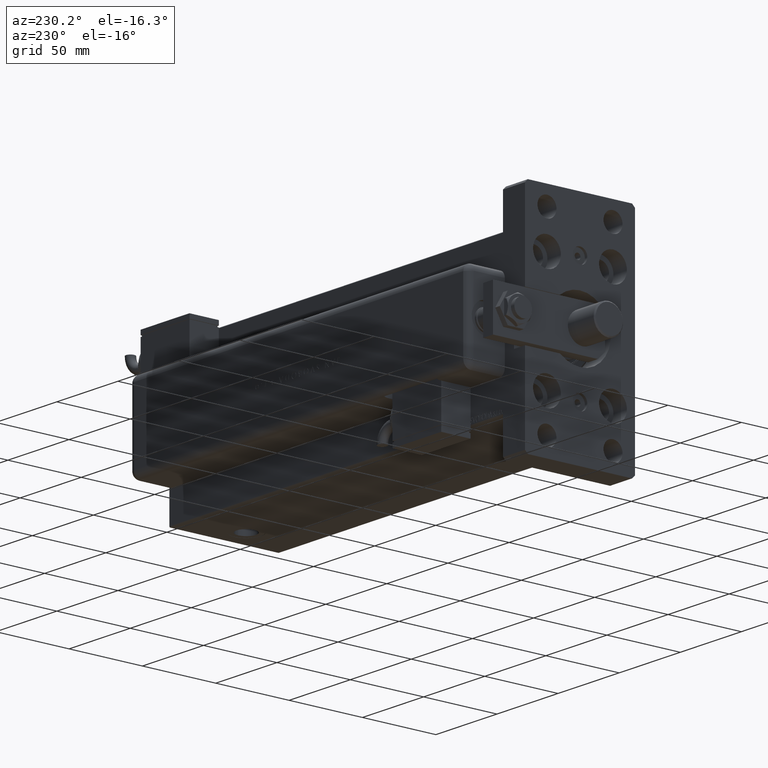
[diagram: clean part render]
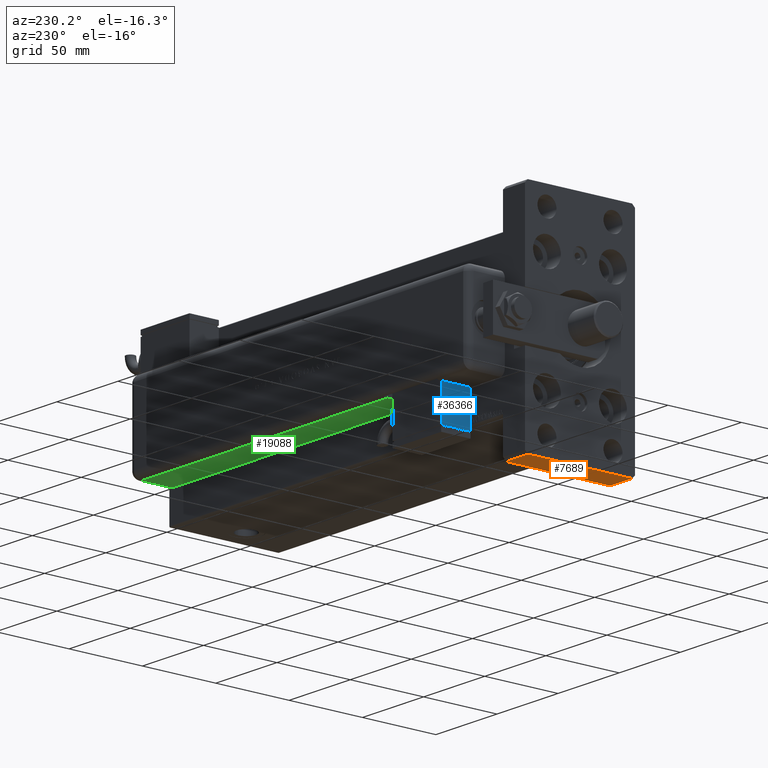
[diagram: same view with three faces highlighted in distinct colors, each labeled with its STEP entity id]
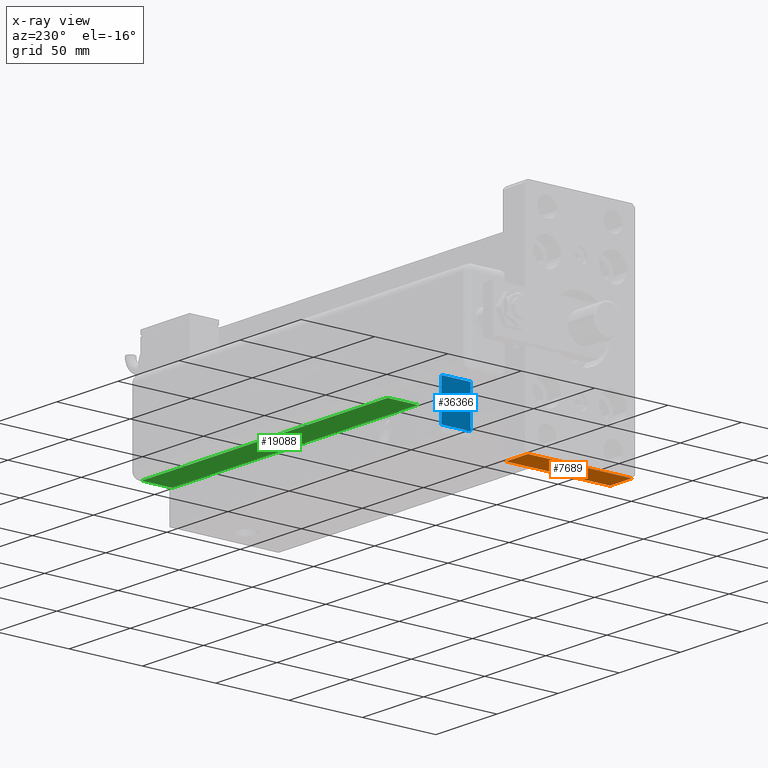
[diagram: x-ray of the same camera — body ghosted, the three highlighted faces saturated]
A machine part, auxiliary view with three faces highlighted in distinct colors.
The next image is the same camera in x-ray (body ghosted, the three faces saturated) — at least one of them is partly hidden behind the body in this view.
Their STEP definitions:

[orange] entity #7689 — the highlighted planar face has unit normal (0, 0, 1).
#163 = LINE ( 'NONE', #43506, #29655 ) ;
#878 = DIRECTION ( 'NONE',  ( -3.700743415417188632E-16, 1.000000000000000000, 0.000000000000000000 ) ) ;
#1168 = LINE ( 'NONE', #48929, #5758 ) ;
#5423 = VERTEX_POINT ( 'NONE', #29481 ) ;
#5758 = VECTOR ( 'NONE', #5918, 1000.000000000000000 ) ;
#5918 = DIRECTION ( 'NONE',  ( 0.000000000000000000, 0.000000000000000000, -1.000000000000000000 ) ) ;
#6919 = CARTESIAN_POINT ( 'NONE',  ( -75.00000000000001421, 37.50000000000000711, 0.000000000000000000 ) ) ;
#7689 = ADVANCED_FACE ( 'NONE', ( #39155 ), #58428, .F. ) ;
#8773 = ORIENTED_EDGE ( 'NONE', *, *, #30749, .T. ) ;
#9815 = EDGE_CURVE ( 'NONE', #5423, #23132, #56948, .T. ) ;
#11374 = AXIS2_PLACEMENT_3D ( 'NONE', #35343, #30913, #878 ) ;
#13552 = ORIENTED_EDGE ( 'NONE', *, *, #18928, .T. ) ;
#15308 = DIRECTION ( 'NONE',  ( 3.700743415417188632E-16, -1.000000000000000000, 0.000000000000000000 ) ) ;
#16938 = VERTEX_POINT ( 'NONE', #39875 ) ;
#18928 = EDGE_CURVE ( 'NONE', #50788, #5423, #51162, .T. ) ;
#22084 = DIRECTION ( 'NONE',  ( 3.700743415417188632E-16, -1.000000000000000000, 0.000000000000000000 ) ) ;
#23132 = VERTEX_POINT ( 'NONE', #53075 ) ;
#25865 = VECTOR ( 'NONE', #22084, 1000.000000000000000 ) ;
#26269 = ORIENTED_EDGE ( 'NONE', *, *, #49071, .F. ) ;
#29481 = CARTESIAN_POINT ( 'NONE',  ( -74.99999999999998579, -35.49999999999999289, 0.000000000000000000 ) ) ;
#29655 = VECTOR ( 'NONE', #15308, 1000.000000000000000 ) ;
#30749 = EDGE_CURVE ( 'NONE', #16938, #50788, #1168, .T. ) ;
#30913 = DIRECTION ( 'NONE',  ( 1.000000000000000000, 3.700743415417188632E-16, -0.000000000000000000 ) ) ;
#32245 = CARTESIAN_POINT ( 'NONE',  ( -75.00000000000001421, 35.50000000000000711, 0.000000000000000000 ) ) ;
#35343 = CARTESIAN_POINT ( 'NONE',  ( -75.00000000000001421, 37.50000000000000711, 18.00000000000000000 ) ) ;
#36388 = EDGE_LOOP ( 'NONE', ( #13552, #53284, #26269, #8773 ) ) ;
#39155 = FACE_OUTER_BOUND ( 'NONE', #36388, .T. ) ;
#39875 = CARTESIAN_POINT ( 'NONE',  ( -75.00000000000001421, 35.50000000000000711, 18.00000000000000000 ) ) ;
#43506 = CARTESIAN_POINT ( 'NONE',  ( -75.00000000000001421, 37.50000000000000711, 18.00000000000000000 ) ) ;
#48929 = CARTESIAN_POINT ( 'NONE',  ( -75.00000000000001421, 35.50000000000000711, 18.00000000000000000 ) ) ;
#49071 = EDGE_CURVE ( 'NONE', #16938, #23132, #163, .T. ) ;
#50788 = VERTEX_POINT ( 'NONE', #32245 ) ;
#51162 = LINE ( 'NONE', #6919, #25865 ) ;
#51896 = DIRECTION ( 'NONE',  ( 0.000000000000000000, 0.000000000000000000, 1.000000000000000000 ) ) ;
#53075 = CARTESIAN_POINT ( 'NONE',  ( -74.99999999999998579, -35.49999999999999289, 18.00000000000000000 ) ) ;
#53284 = ORIENTED_EDGE ( 'NONE', *, *, #9815, .T. ) ;
#56332 = CARTESIAN_POINT ( 'NONE',  ( -74.99999999999998579, -35.49999999999999289, 18.00000000000000000 ) ) ;
#56948 = LINE ( 'NONE', #56332, #60805 ) ;
#58428 = PLANE ( 'NONE',  #11374 ) ;
#60805 = VECTOR ( 'NONE', #51896, 1000.000000000000000 ) ;

[blue] entity #36366 — the highlighted planar face has unit normal (1, -0, -0).
#1425 = CARTESIAN_POINT ( 'NONE',  ( 20.00000000000005329, -13.49999999999996092, 10.00000000000000000 ) ) ;
#2105 = DIRECTION ( 'NONE',  ( 1.284980352575412699E-16, 1.000000000000000000, 0.000000000000000000 ) ) ;
#6153 = LINE ( 'NONE', #25443, #23745 ) ;
#6203 = CARTESIAN_POINT ( 'NONE',  ( 20.00000000000005684, 13.50000000000003730, 10.00000000000000000 ) ) ;
#11145 = PLANE ( 'NONE',  #49464 ) ;
#11556 = VERTEX_POINT ( 'NONE', #6203 ) ;
#16336 = VECTOR ( 'NONE', #22921, 1000.000000000000000 ) ;
#19656 = VERTEX_POINT ( 'NONE', #26064 ) ;
#20067 = LINE ( 'NONE', #29555, #29999 ) ;
#21884 = DIRECTION ( 'NONE',  ( -1.000000000000000000, 1.284980352575412699E-16, 0.000000000000000000 ) ) ;
#21922 = ORIENTED_EDGE ( 'NONE', *, *, #57350, .T. ) ;
#22921 = DIRECTION ( 'NONE',  ( -0.000000000000000000, -0.000000000000000000, -1.000000000000000000 ) ) ;
#23745 = VECTOR ( 'NONE', #59273, 1000.000000000000000 ) ;
#25443 = CARTESIAN_POINT ( 'NONE',  ( 20.00000000000005329, -13.49999999999996092, 10.00000000000000000 ) ) ;
#26064 = CARTESIAN_POINT ( 'NONE',  ( 20.00000000000005329, -13.49999999999996092, -10.00000000000000000 ) ) ;
#26146 = LINE ( 'NONE', #31825, #45223 ) ;
#27648 = VERTEX_POINT ( 'NONE', #53321 ) ;
#28912 = LINE ( 'NONE', #47287, #16336 ) ;
#29555 = CARTESIAN_POINT ( 'NONE',  ( 20.00000000000005329, -13.49999999999996092, -10.00000000000000000 ) ) ;
#29999 = VECTOR ( 'NONE', #43805, 1000.000000000000000 ) ;
#31002 = EDGE_CURVE ( 'NONE', #19656, #27648, #20067, .T. ) ;
#31654 = EDGE_CURVE ( 'NONE', #54567, #11556, #26146, .T. ) ;
#31825 = CARTESIAN_POINT ( 'NONE',  ( 20.00000000000005329, -13.49999999999996092, 10.00000000000000000 ) ) ;
#34124 = ORIENTED_EDGE ( 'NONE', *, *, #45635, .F. ) ;
#34804 = ORIENTED_EDGE ( 'NONE', *, *, #31002, .T. ) ;
#36366 = ADVANCED_FACE ( 'NONE', ( #45930 ), #11145, .F. ) ;
#43075 = ORIENTED_EDGE ( 'NONE', *, *, #31654, .F. ) ;
#43805 = DIRECTION ( 'NONE',  ( 1.284980352575412699E-16, 1.000000000000000000, 0.000000000000000000 ) ) ;
#45223 = VECTOR ( 'NONE', #2105, 1000.000000000000000 ) ;
#45635 = EDGE_CURVE ( 'NONE', #11556, #27648, #28912, .T. ) ;
#45930 = FACE_OUTER_BOUND ( 'NONE', #56113, .T. ) ;
#47287 = CARTESIAN_POINT ( 'NONE',  ( 20.00000000000005684, 13.50000000000003730, 10.00000000000000000 ) ) ;
#49464 = AXIS2_PLACEMENT_3D ( 'NONE', #59530, #21884, #54479 ) ;
#53321 = CARTESIAN_POINT ( 'NONE',  ( 20.00000000000005684, 13.50000000000003730, -10.00000000000000000 ) ) ;
#54479 = DIRECTION ( 'NONE',  ( -1.284980352575412699E-16, -1.000000000000000000, 0.000000000000000000 ) ) ;
#54567 = VERTEX_POINT ( 'NONE', #1425 ) ;
#56113 = EDGE_LOOP ( 'NONE', ( #34804, #34124, #43075, #21922 ) ) ;
#57350 = EDGE_CURVE ( 'NONE', #54567, #19656, #6153, .T. ) ;
#59273 = DIRECTION ( 'NONE',  ( -0.000000000000000000, -0.000000000000000000, -1.000000000000000000 ) ) ;
#59530 = CARTESIAN_POINT ( 'NONE',  ( 20.00000000000005329, -13.49999999999996092, 10.00000000000000000 ) ) ;

[green] entity #19088 — the highlighted planar face has unit normal (0, 0, 1).
#529 = VERTEX_POINT ( 'NONE', #12964 ) ;
#623 = AXIS2_PLACEMENT_3D ( 'NONE', #29014, #9408, #9099 ) ;
#3725 = PLANE ( 'NONE',  #623 ) ;
#6954 = EDGE_CURVE ( 'NONE', #43785, #529, #9283, .T. ) ;
#7859 = CARTESIAN_POINT ( 'NONE',  ( -28.99999999999999645, 22.99999999999998934, 206.0000000000000284 ) ) ;
#8268 = DIRECTION ( 'NONE',  ( 0.000000000000000000, 0.000000000000000000, -1.000000000000000000 ) ) ;
#9099 = DIRECTION ( 'NONE',  ( -0.000000000000000000, 0.000000000000000000, -1.000000000000000000 ) ) ;
#9283 = LINE ( 'NONE', #10194, #29576 ) ;
#9408 = DIRECTION ( 'NONE',  ( 1.000000000000000000, 0.000000000000000000, -0.000000000000000000 ) ) ;
#10194 = CARTESIAN_POINT ( 'NONE',  ( -28.99999999999999645, -1.040834085586084257E-14, 5.000000000000004441 ) ) ;
#12964 = CARTESIAN_POINT ( 'NONE',  ( -28.99999999999999645, -9.421223957302265857E-15, 5.000000000000004441 ) ) ;
#13211 = VECTOR ( 'NONE', #8268, 1000.000000000000000 ) ;
#16492 = DIRECTION ( 'NONE',  ( -0.000000000000000000, -0.000000000000000000, -1.000000000000000000 ) ) ;
#18756 = DIRECTION ( 'NONE',  ( 0.000000000000000000, -1.000000000000000000, 0.000000000000000000 ) ) ;
#19088 = ADVANCED_FACE ( 'NONE', ( #47056 ), #3725, .F. ) ;
#19323 = ORIENTED_EDGE ( 'NONE', *, *, #43732, .T. ) ;
#19944 = CARTESIAN_POINT ( 'NONE',  ( -28.99999999999999645, 20.79999999999998295, 5.000000000000004441 ) ) ;
#20621 = LINE ( 'NONE', #26307, #30061 ) ;
#22050 = CARTESIAN_POINT ( 'NONE',  ( -28.99999999999999645, 20.79999999999998295, 206.0000000000000284 ) ) ;
#24583 = EDGE_CURVE ( 'NONE', #51001, #36411, #37586, .T. ) ;
#25496 = EDGE_CURVE ( 'NONE', #36411, #529, #20621, .T. ) ;
#26307 = CARTESIAN_POINT ( 'NONE',  ( -28.99999999999999645, -9.421223957302265857E-15, 274.0000000000000000 ) ) ;
#28088 = DIRECTION ( 'NONE',  ( 0.000000000000000000, -1.000000000000000000, 0.000000000000000000 ) ) ;
#29014 = CARTESIAN_POINT ( 'NONE',  ( -28.99999999999999645, 25.79999999999998295, 274.0000000000000000 ) ) ;
#29576 = VECTOR ( 'NONE', #18756, 1000.000000000000000 ) ;
#30061 = VECTOR ( 'NONE', #16492, 1000.000000000000000 ) ;
#32007 = VECTOR ( 'NONE', #28088, 1000.000000000000000 ) ;
#35198 = CARTESIAN_POINT ( 'NONE',  ( -28.99999999999999645, -9.421223957302264279E-15, 206.0000000000000284 ) ) ;
#36411 = VERTEX_POINT ( 'NONE', #35198 ) ;
#37586 = LINE ( 'NONE', #7859, #32007 ) ;
#43732 = EDGE_CURVE ( 'NONE', #51001, #43785, #47185, .T. ) ;
#43785 = VERTEX_POINT ( 'NONE', #19944 ) ;
#45737 = ORIENTED_EDGE ( 'NONE', *, *, #6954, .T. ) ;
#47056 = FACE_OUTER_BOUND ( 'NONE', #55519, .T. ) ;
#47185 = LINE ( 'NONE', #51593, #13211 ) ;
#51001 = VERTEX_POINT ( 'NONE', #22050 ) ;
#51593 = CARTESIAN_POINT ( 'NONE',  ( -28.99999999999999645, 20.79999999999998295, 274.0000000000000000 ) ) ;
#52086 = ORIENTED_EDGE ( 'NONE', *, *, #24583, .F. ) ;
#55519 = EDGE_LOOP ( 'NONE', ( #59796, #52086, #19323, #45737 ) ) ;
#59796 = ORIENTED_EDGE ( 'NONE', *, *, #25496, .F. ) ;